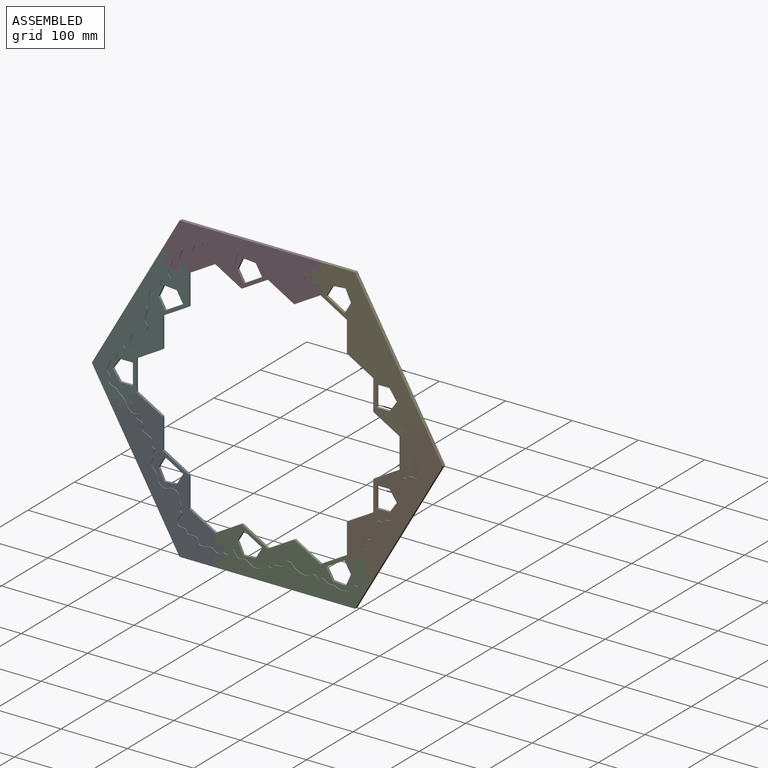
[diagram: assembled view]
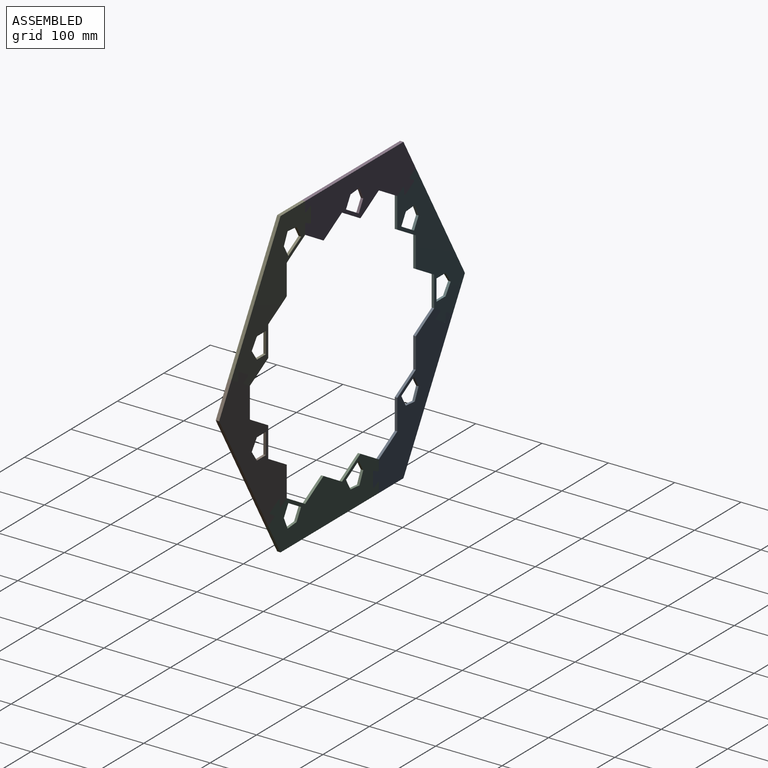
[diagram: assembled view, second angle]
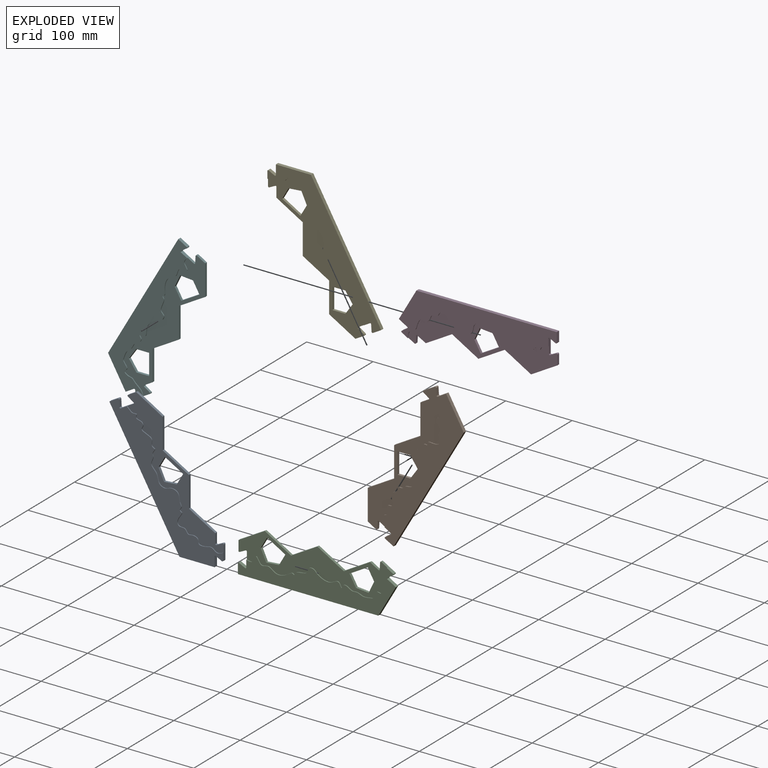
[diagram: exploded view]
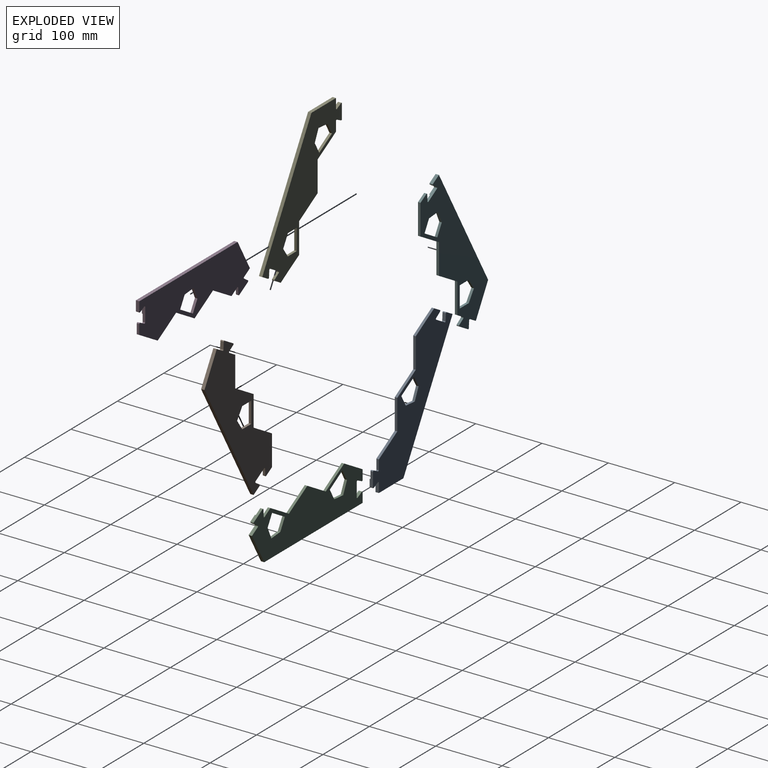
[diagram: exploded view, second angle]
ASSEMBLY  parts=6 mates=9
PART A: 34 faces, bbox 238.1x5.1x73.8 mm
  f0: plane 18.44x10.65mm, normal (0.5,0,0.87), area 94.6mm2, adj f7,f20,f21,f31,f32,f33
  f1: plane 39.69x22.91mm, normal (-0.5,0,0.87), area 174.6mm2, adj f2,f14,f21,f33
  f2: plane 14.51x3.81mm, normal (-1,0,0), area 55.3mm2, adj f1,f3,f21,f33
  f3: cylinder r=1.27mm len=3.81mm, axis (0,1,0), area 9.8mm2, adj f2,f4,f21,f33
  f4: plane 9.02x4.51mm, normal (0.45,0,-0.89), area 38.4mm2, adj f3,f5,f21,f33
  f5: cylinder r=1.27mm len=3.81mm, axis (0,1,0), area 9.8mm2, adj f4,f6,f21,f33
  f6: plane 21.29x5.08mm, normal (-1,0,0), area 94.6mm2, adj f5,f20,f21,f22,f32,f33
  f7: cylinder r=1.27mm len=3.81mm, axis (0,1,0), area 9.8mm2, adj f0,f8,f21,f33
  f8: plane 10.07x3.81mm, normal (-1,0,0.06), area 38.4mm2, adj f7,f9,f21,f33
  f9: cylinder r=1.27mm len=3.81mm, axis (0,1,0), area 9.8mm2, adj f8,f10,f21,f33
  f10: plane 12.56x7.25mm, normal (0.5,0,0.87), area 55.3mm2, adj f9,f11,f21,f33
  f11: plane 39.69x22.91mm, normal (-0.5,0,0.87), area 174.6mm2, adj f10,f12,f21,f33
  f12: plane 39.69x22.91mm, normal (0.5,0,0.87), area 174.6mm2, adj f11,f13,f21,f33
  f13: plane 39.69x22.91mm, normal (-0.5,0,0.87), area 174.6mm2, adj f12,f14,f21,f33
  f14: plane 39.69x22.91mm, normal (0.5,0,0.87), area 174.6mm2, adj f1,f13,f21,f33
  f15: plane 17.56x8.2mm, normal (-0.91,0,0.42), area 73.8mm2, adj f16,f19,f21,f33
  f16: plane 16.78x9.69mm, normal (-0.87,0,-0.5), area 73.8mm2, adj f15,f17,f21,f33
  f17: plane 27.5x15.88mm, normal (0.5,0,-0.87), area 121mm2, adj f16,f18,f21,f33
  f18: plane 16.78x9.69mm, normal (0.87,0,0.5), area 73.8mm2, adj f17,f19,f21,f33
  f19: plane 19.3x3.81mm, normal (0.09,0,1), area 73.8mm2, adj f15,f18,f21,f33
  f20: plane 238.12x68.28mm, normal (0,-1,0), area 7194.7mm2, adj f0,f6,f22,f23,f24,f25,f26,f27
  f21: plane 238.12x73.77mm, normal (0,1,0), area 12241.6mm2, adj f0,f1,f2,f3,f4,f5,f6,f7
  f22: cylinder r=1.27mm len=5.08mm, axis (0,1,0), area 13.1mm2, adj f6,f20,f21,f23
  f23: plane 9.02x5.08mm, normal (0.45,0,0.89), area 51.3mm2, adj f20,f21,f22,f24
  f24: cylinder r=1.27mm len=5.08mm, axis (0,1,0), area 13.1mm2, adj f20,f21,f23,f25
  f25: plane 14.51x5.08mm, normal (-1,0,0), area 73.7mm2, adj f20,f21,f24,f26
  f26: plane 211.66x5.08mm, normal (0,0,-1), area 1075.3mm2, adj f20,f21,f25,f27
  f27: plane 45.82x26.46mm, normal (0.87,0,-0.5), area 268.8mm2, adj f20,f21,f26,f28
  f28: plane 12.56x7.25mm, normal (0.5,0,0.87), area 73.7mm2, adj f20,f21,f27,f29
  f29: cylinder r=1.27mm len=5.08mm, axis (0,1,0), area 13.1mm2, adj f20,f21,f28,f30
  f30: plane 8.42x5.56mm, normal (0.55,0,-0.83), area 51.3mm2, adj f20,f21,f29,f31
  f31: cylinder r=1.27mm len=5.08mm, axis (0,1,0), area 13.1mm2, adj f0,f20,f21,f30
  f32: extruded ~211.93x48.79mm, area 342.6mm2, adj f0,f6,f20,f33
  f33: plane 224.63x54.98mm, normal (0,-1,0), area 5046.9mm2, adj f0,f1,f2,f3,f4,f5,f6,f7
PART B: same geometry as A
PART C: 40 faces, bbox 238.1x5.1x73.8 mm
  f0: plane 238.12x73.77mm, normal (0,1,0), area 11450.1mm2, adj f2,f3,f4,f5,f6,f7,f8,f9
  f1: plane 224.63x59.17mm, normal (0,-1,0), area 5573.3mm2, adj f2,f3,f4,f5,f6,f7,f8,f9
  f2: plane 18.44x10.65mm, normal (0.5,0,0.87), area 94.6mm2, adj f0,f1,f9,f26,f27,f29
  f3: plane 39.69x22.91mm, normal (-0.5,0,0.87), area 174.6mm2, adj f0,f1,f4,f16
  f4: plane 14.51x3.81mm, normal (-1,0,0), area 55.3mm2, adj f0,f1,f3,f5
  f5: cylinder r=1.27mm len=3.81mm, axis (0,1,0), area 9.8mm2, adj f0,f1,f4,f6
  f6: plane 9.02x4.51mm, normal (0.45,0,-0.89), area 38.4mm2, adj f0,f1,f5,f7
  f7: cylinder r=1.27mm len=3.81mm, axis (0,1,0), area 9.8mm2, adj f0,f1,f6,f8
  f8: plane 21.29x5.08mm, normal (-1,0,0), area 94.6mm2, adj f0,f1,f7,f17,f27,f28
  f9: cylinder r=1.27mm len=3.81mm, axis (0,1,0), area 9.8mm2, adj f0,f1,f2,f10
  f10: plane 10.07x3.81mm, normal (-1,0,0.06), area 38.4mm2, adj f0,f1,f9,f11
  f11: cylinder r=1.27mm len=3.81mm, axis (0,1,0), area 9.8mm2, adj f0,f1,f10,f12
  f12: plane 12.56x7.25mm, normal (0.5,0,0.87), area 55.3mm2, adj f0,f1,f11,f13
  f13: plane 39.69x22.91mm, normal (-0.5,0,0.87), area 174.6mm2, adj f0,f1,f12,f14
  f14: plane 39.69x22.91mm, normal (0.5,0,0.87), area 174.6mm2, adj f0,f1,f13,f15
  f15: plane 39.69x22.91mm, normal (-0.5,0,0.87), area 174.6mm2, adj f0,f1,f14,f16
  f16: plane 39.69x22.91mm, normal (0.5,0,0.87), area 174.6mm2, adj f0,f1,f3,f15
  f17: cylinder r=1.27mm len=5.08mm, axis (0,1,0), area 13.1mm2, adj f0,f8,f18,f27
  f18: plane 9.02x5.08mm, normal (0.45,0,0.89), area 51.3mm2, adj f0,f17,f19,f27
  f19: cylinder r=1.27mm len=5.08mm, axis (0,1,0), area 13.1mm2, adj f0,f18,f20,f27
  f20: plane 14.51x5.08mm, normal (-1,0,0), area 73.7mm2, adj f0,f19,f21,f27
  f21: plane 211.66x5.08mm, normal (0,0,-1), area 1075.3mm2, adj f0,f20,f22,f27
  f22: plane 45.82x26.46mm, normal (0.87,0,-0.5), area 268.8mm2, adj f0,f21,f23,f27
  f23: plane 12.56x7.25mm, normal (0.5,0,0.87), area 73.7mm2, adj f0,f22,f24,f27
  f24: cylinder r=1.27mm len=5.08mm, axis (0,1,0), area 13.1mm2, adj f0,f23,f25,f27
  f25: plane 8.42x5.56mm, normal (0.55,0,-0.83), area 51.3mm2, adj f0,f24,f26,f27
  f26: cylinder r=1.27mm len=5.08mm, axis (0,1,0), area 13.1mm2, adj f0,f2,f25,f27
  f27: plane 238.12x68.28mm, normal (0,-1,0), area 5876.9mm2, adj f2,f8,f17,f18,f19,f20,f21,f22
  f28: extruded ~188.29x22.21mm, area 275.6mm2, adj f1,f8,f27,f29
  f29: extruded ~47.41x23.63mm, area 77.2mm2, adj f1,f2,f27,f28
  f30: plane 27.5x15.88mm, normal (0.5,0,-0.87), area 121mm2, adj f0,f1,f31,f34
  f31: plane 16.78x9.69mm, normal (0.87,0,0.5), area 73.8mm2, adj f0,f1,f30,f32
  f32: plane 19.3x3.81mm, normal (0.09,0,1), area 73.8mm2, adj f0,f1,f31,f33
  f33: plane 17.56x8.2mm, normal (-0.91,0,0.42), area 73.8mm2, adj f0,f1,f32,f34
  f34: plane 16.78x9.69mm, normal (-0.87,0,-0.5), area 73.8mm2, adj f0,f1,f30,f33
  f35: plane 27.5x15.88mm, normal (-0.5,0,-0.87), area 121mm2, adj f0,f1,f36,f39
  f36: plane 16.78x9.69mm, normal (0.87,0,-0.5), area 73.8mm2, adj f0,f1,f35,f37
  f37: plane 17.56x8.2mm, normal (0.91,0,0.42), area 73.8mm2, adj f0,f1,f36,f38
  f38: plane 19.3x3.81mm, normal (-0.09,0,1), area 73.8mm2, adj f0,f1,f37,f39
  f39: plane 16.78x9.69mm, normal (-0.87,0,0.5), area 73.8mm2, adj f0,f1,f35,f38
PART D: same geometry as A
PART E: same geometry as C
PART F: same geometry as C
PLACE A rot(axis=(0,1,0),60deg) t=(645.15,734.78,-265.86)mm
PLACE B rot(axis=(0,-1,0),60deg) t=(934.77,734.78,-231.59)mm
PLACE C rot(axis=(-0.77,-0.62,0.15),0deg) t=(700.69,734.78,-302.6)mm
PLACE D rot(axis=(0,-1,0),180deg) t=(760.28,734.78,2.09)mm
PLACE E rot(axis=(0,-1,0),120deg) t=(938.81,734.78,-165.12)mm
PLACE F rot(axis=(0,1,0),120deg) t=(700.69,734.78,-27.64)mm
MATE planar A.f20 <-> F.f27  axis (0,-1,0) through (620.48,729.7,-310.12)mm
MATE fastened A.f6 <-> F.f2  axis (-0.5,0,0.87) through (558.92,729.7,-215.81)mm
MATE fastened B.f0 <-> E.f8  axis (-0.5,0,0.87) through (1001.21,729.7,-114.43)mm
MATE parallel A.f6 <-> F.f2  axis (-0.5,0,0.87) through (572.74,730.97,-207.82)mm
MATE fastened C.f2 <-> B.f6  axis (0.5,0,0.87) through (934.54,729.7,-331.29)mm
MATE fastened A.f0 <-> C.f8  axis (1,0,0) through (713.39,729.7,-381.98)mm
MATE planar F.f22 <-> A.f26  axis (-0.87,0,-0.5) through (528.71,732.24,-188.03)mm
MATE fastened E.f2 <-> D.f6  axis (-1,0,0) through (846.74,729.7,51.75)mm
MATE planar A.f20 <-> C.f27  axis (0,-1,0) through (620.48,729.7,-310.12)mm
